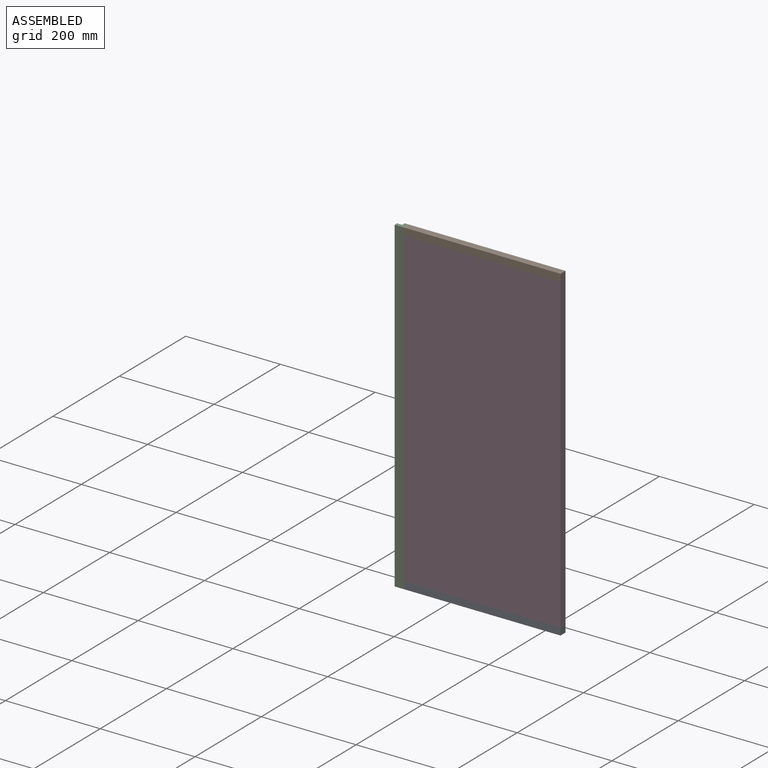
[diagram: assembled view]
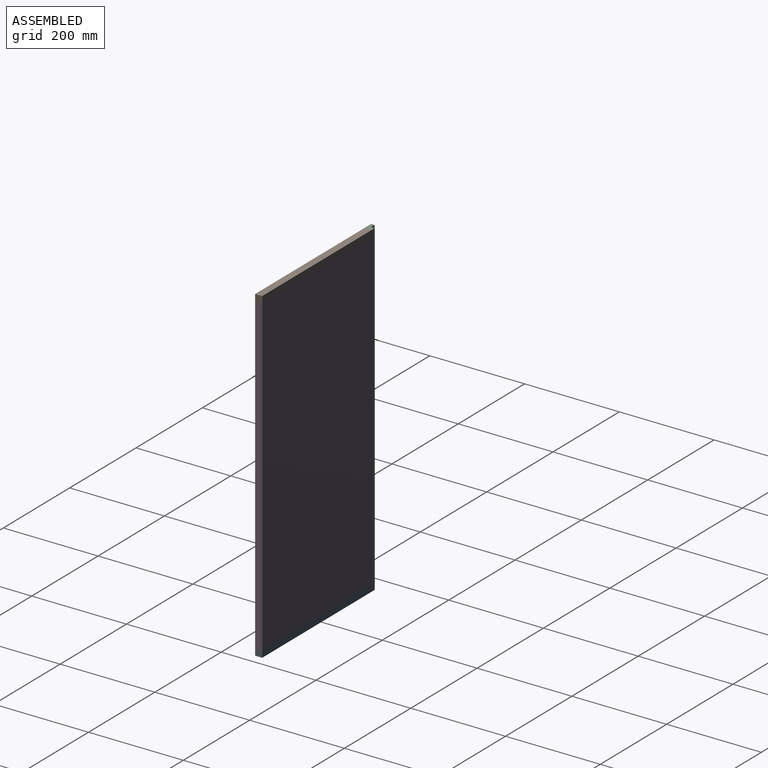
[diagram: assembled view, second angle]
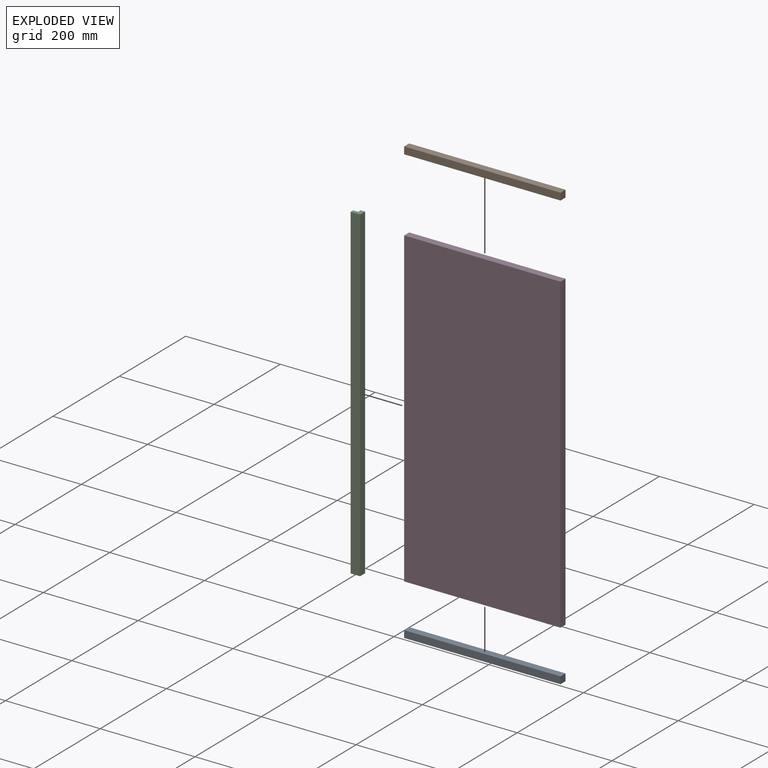
[diagram: exploded view]
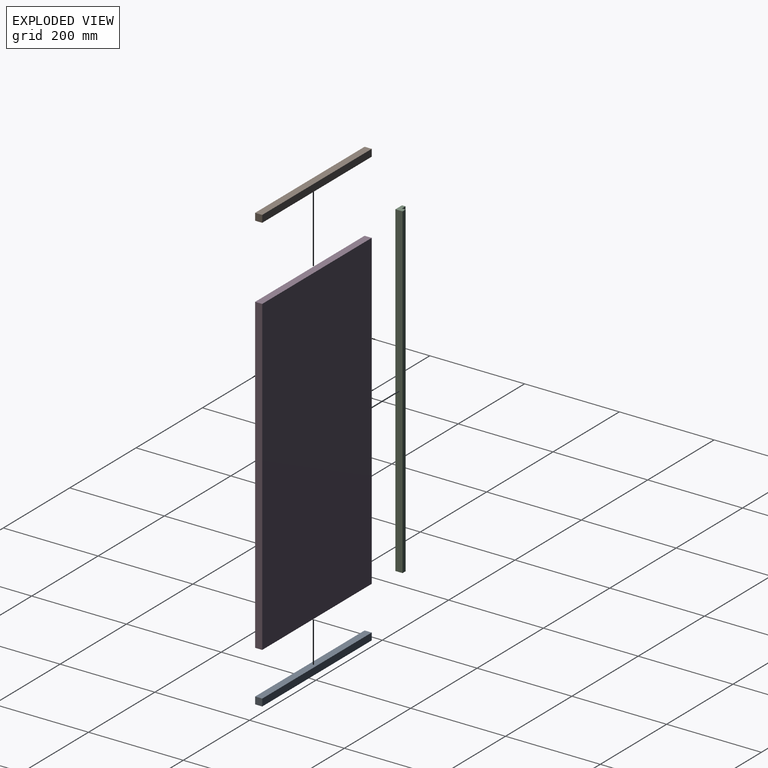
[diagram: exploded view, second angle]
ASSEMBLY  parts=4 mates=3
PART A: 6 faces, bbox 330x15x15 mm
  f0: plane 15x15mm, normal (1,0,0), area 225mm2, adj f1,f3,f4,f5
  f1: plane 330x15mm, normal (0,0,-1), area 4950mm2, adj f0,f2,f4,f5
  f2: plane 15x15mm, normal (-1,0,0), area 225mm2, adj f1,f3,f4,f5
  f3: plane 330x15mm, normal (0,0,1), area 4950mm2, adj f0,f2,f4,f5
  f4: plane 330x15mm, normal (0,-1,0), area 4950mm2, adj f0,f1,f2,f3
  f5: plane 330x15mm, normal (0,1,0), area 4950mm2, adj f0,f1,f2,f3
PART B: 6 faces, bbox 330x15x15 mm
  f0: plane 330x15mm, normal (0,0,1), area 4950mm2, adj f1,f3,f4,f5
  f1: plane 15x15mm, normal (1,0,0), area 225mm2, adj f0,f2,f4,f5
  f2: plane 330x15mm, normal (0,0,-1), area 4950mm2, adj f1,f3,f4,f5
  f3: plane 15x15mm, normal (-1,0,0), area 225mm2, adj f0,f2,f4,f5
  f4: plane 330x15mm, normal (0,-1,0), area 4950mm2, adj f0,f1,f2,f3
  f5: plane 330x15mm, normal (0,1,0), area 4950mm2, adj f0,f1,f2,f3
PART C: 8 faces, bbox 20x15x690 mm
  f0: plane 690x7.25mm, normal (-1,0,0), area 5002.5mm2, adj f1,f3,f5,f6
  f1: plane 20x15mm, normal (0,0,1), area 216.7mm2, adj f0,f2,f4,f5,f6,f7
  f2: plane 690x9.25mm, normal (0,1,0), area 6382.5mm2, adj f1,f3,f4,f7
  f3: plane 20x15mm, normal (0,0,-1), area 216.7mm2, adj f0,f2,f4,f5,f6,f7
  f4: plane 690x15mm, normal (1,0,0), area 10350mm2, adj f1,f2,f3,f5
  f5: plane 690x20mm, normal (0,-1,0), area 13800mm2, adj f0,f1,f3,f4
  f6: plane 690x10.75mm, normal (0,1,0), area 7417.5mm2, adj f0,f1,f3,f7
  f7: plane 690x7.75mm, normal (-1,0,0), area 5347.5mm2, adj f1,f2,f3,f6
PART D: 6 faces, bbox 330x15x660 mm
  f0: plane 330x15mm, normal (0,0,1), area 4950mm2, adj f1,f3,f4,f5
  f1: plane 660x15mm, normal (1,0,0), area 9900mm2, adj f0,f2,f4,f5
  f2: plane 330x15mm, normal (0,0,-1), area 4950mm2, adj f1,f3,f4,f5
  f3: plane 660x15mm, normal (-1,0,0), area 9900mm2, adj f0,f2,f4,f5
  f4: plane 660x330mm, normal (0,-1,0), area 217800mm2, adj f0,f1,f2,f3
  f5: plane 660x330mm, normal (0,1,0), area 217800mm2, adj f0,f1,f2,f3
PLACE A t=(0,0,-104)mm
PLACE B t=(0,0,-104)mm
PLACE C t=(0,0,-104)mm
PLACE D t=(0,0,-104)mm
MATE fastened C.f4 <-> A.f2  axis (1,0,0) through (31.97,-15,-163.79)mm
MATE fastened C.f4 <-> B.f3  axis (1,0,0) through (31.97,-15,526.21)mm
MATE fastened B.f2 <-> D.f0  axis (0,0,-1) through (31.97,-15,511.21)mm
